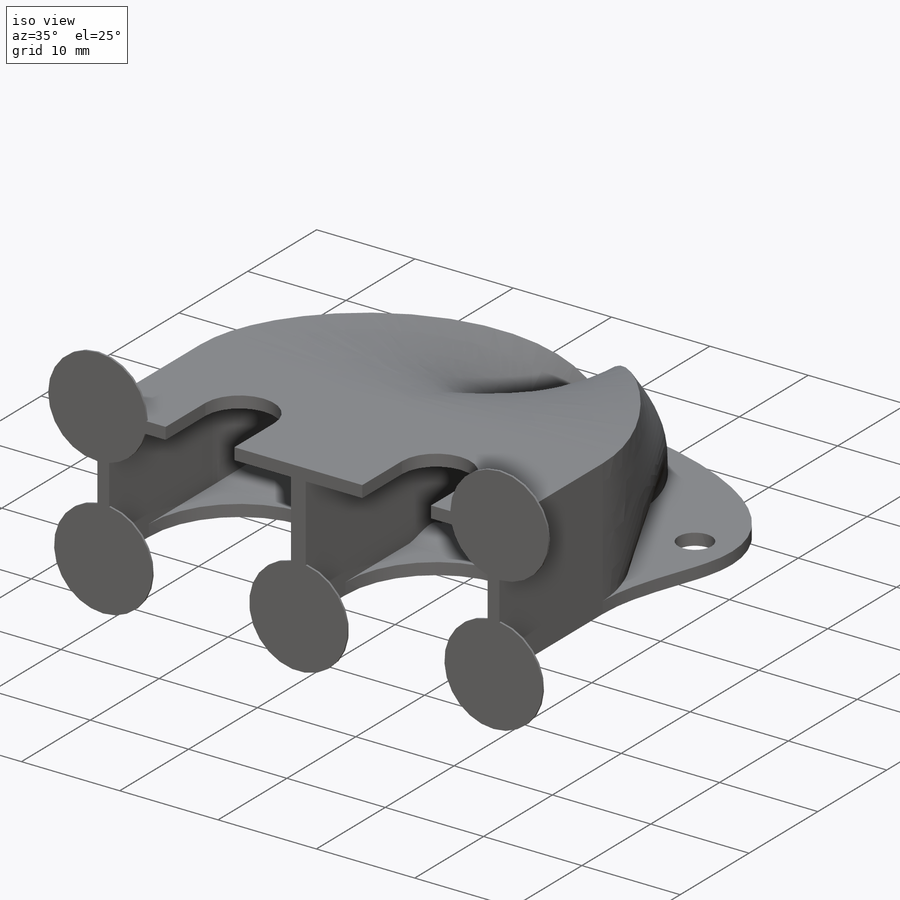
[diagram: iso view]
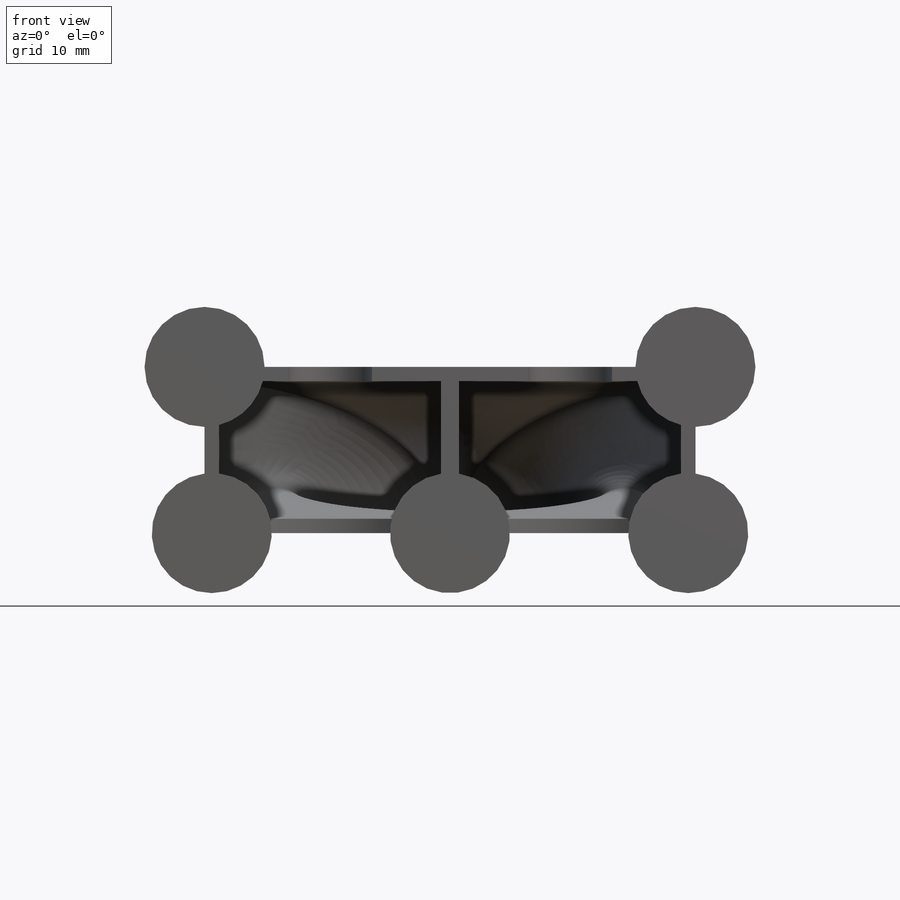
[diagram: front view]
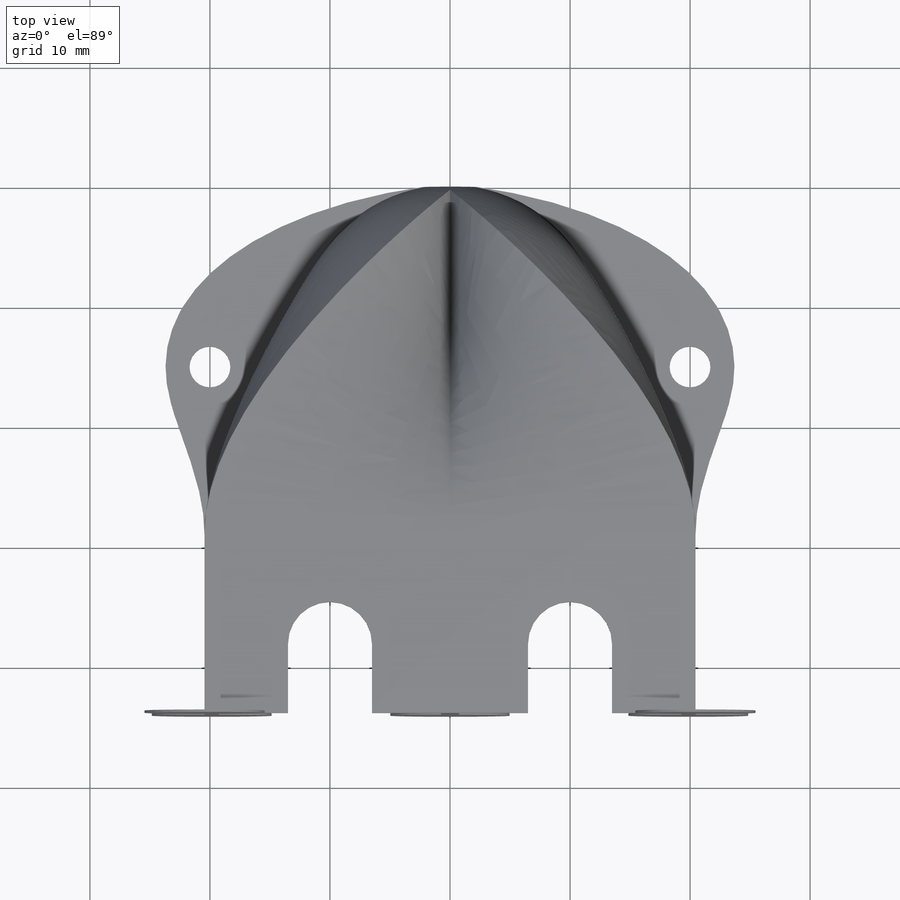
[diagram: top view]
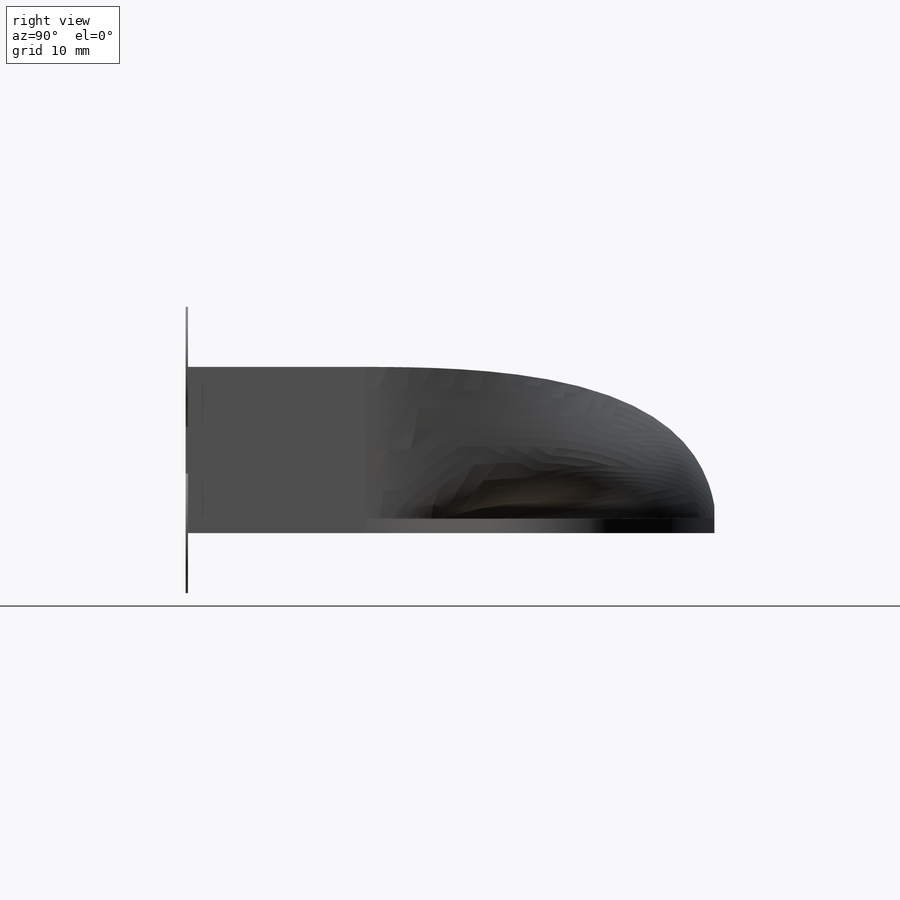
[diagram: right view]
SOLIDWORKS PART (.sldprt)
format: sldprt  version: not decoded by parser v0  size: 706,560 bytes
history: native  units: mm
features: sketch x9, extrude x3, cut_extrude x3, plane x2, material x1, shell x1, mirror x1 (+12 scaffold rows collapsed)
feature tree (32):
  scaffold x12  (default folders/planes/origin — collapsed)
  material  "Material <not specified>"
  sketch  "Sketch1"  dims[c1.D1=18.5mm c1.D4=23.0mm c1.D2=20.0mm c1.D3=38.3mm c1.D5=12.5mm c1.D8=40.9mm c1.D9=1.2mm c1.D6=1.2mm c1.D7=1.2mm c2.D8=1.2mm]
  plane  "Plane1"
  plane  "Plane2"  Offset=9.25mm
  sketch  "Sketch2"  dims[c1.D1=~15.158444mm c1.D2=~15.239882mm c2.D1=~14.137133mm c2.D2=~9.727176mm c3.D1=13.85mm c3.D2=20.9mm]
  sketch  "Front"  dims[c1.D1=~32.770513mm c1.D2=~22.160468mm c2.D1=~20.30361mm c2.D2=40.9mm c3.D1=13.85mm c3.D2=21.8mm]
  sketch  "Sketch4"  dims[D1=0.0mm]
  extrude  "Boss-Extrude1"  Depth=15mm
  shell  "Shell2"  Thickness=1.2mm
  mirror  "Mirror4"
  sketch  "Sketch5"  dims[D1=~2.593506mm D2=~6.758746mm]
  cut_extrude  "Cut-Extrude1"  [1 undecoded]
  sketch  "Sketch6"  dims[D1=~30.268377mm D2=15.0mm D3=20.0mm D5=~4.491094mm D4=2.0mm]
  extrude  "Boss-Extrude3"  Depth=1.2mm
  sketch  "Sketch7"  dims[c1.D1=5.75mm c1.D2=18.5mm c2.D1=5.75mm c2.D2=18.5mm]
  cut_extrude  "Top Recess"  [1 undecoded]
  sketch  "Sketch8"  dims[c1.D1=7.0mm c1.D2=7.0mm c1.D3=5.75mm c1.D4=7.0mm c2.D3=5.75mm c2.D4=7.0mm]
  cut_extrude  "Bottom Recess"  Depth=2mm
  sketch  "Sketch9"  dims[D1=10.0mm]
  extrude  "Suport Pads"  Depth=0.2mm
decode coverage: 14 of 17 modeling features carry decoded parameters
note: ~ marks probable driven/reference dimensions
note: 2 parameter values undecoded
note: suppression state not decoded; provenance and decode notes live in map.json
